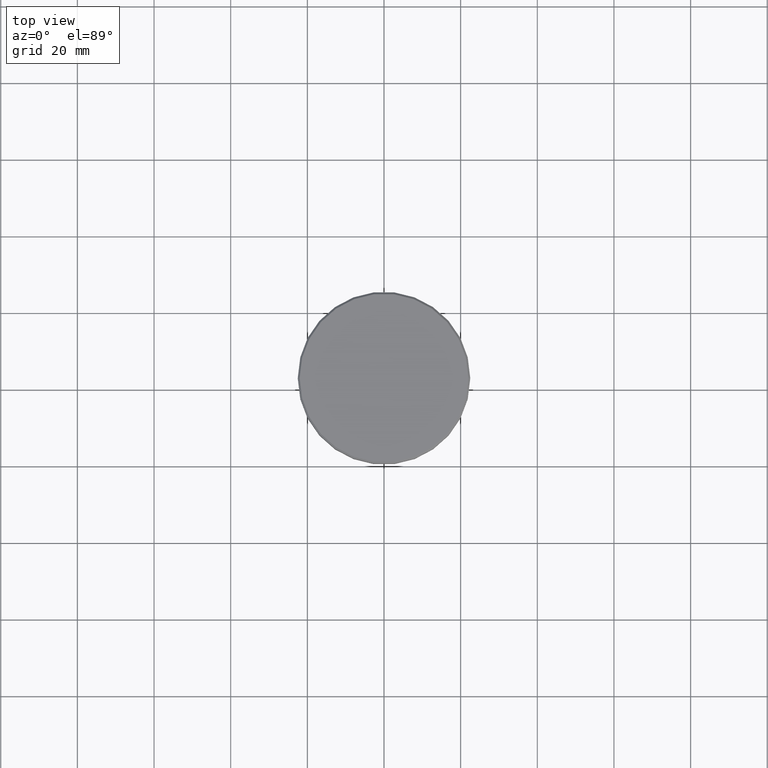
[diagram: clean part render]
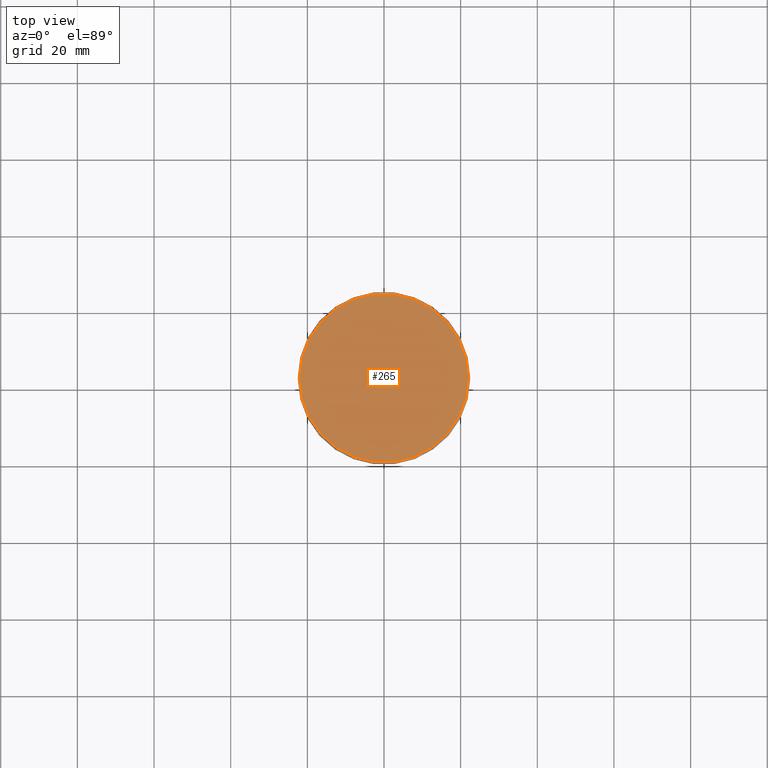
[diagram: same view with one face highlighted and labeled with its STEP entity id]
A machine part, top view. The second image highlights one B-rep face of the part: STEP entity #265.
In plain terms, the highlighted planar face has unit normal (0, -0, 1).
Its self-contained STEP definition (entity closure, byte-faithful):
#19 = CIRCLE ( 'NONE', #191, 21.99999999999999289 ) ;
#40 = DIRECTION ( 'NONE',  ( 1.000000000000000000, 0.000000000000000000, 0.000000000000000000 ) ) ;
#63 = CARTESIAN_POINT ( 'NONE',  ( 21.99999999999999289, 2.724839128102860202E-15, 0.000000000000000000 ) ) ;
#129 = AXIS2_PLACEMENT_3D ( 'NONE', #655, #1025, #288 ) ;
#170 = CIRCLE ( 'NONE', #129, 21.99999999999999289 ) ;
#191 = AXIS2_PLACEMENT_3D ( 'NONE', #554, #922, #459 ) ;
#244 = EDGE_CURVE ( 'NONE', #1045, #420, #170, .T. ) ;
#265 = ADVANCED_FACE ( 'NONE', ( #675 ), #488, .T. ) ;
#288 = DIRECTION ( 'NONE',  ( 1.000000000000000000, 0.000000000000000000, 0.000000000000000000 ) ) ;
#289 = ORIENTED_EDGE ( 'NONE', *, *, #1021, .T. ) ;
#420 = VERTEX_POINT ( 'NONE', #831 ) ;
#459 = DIRECTION ( 'NONE',  ( 1.000000000000000000, 0.000000000000000000, 0.000000000000000000 ) ) ;
#488 = PLANE ( 'NONE',  #818 ) ;
#554 = CARTESIAN_POINT ( 'NONE',  ( 0.000000000000000000, 0.000000000000000000, 0.000000000000000000 ) ) ;
#655 = CARTESIAN_POINT ( 'NONE',  ( 0.000000000000000000, 0.000000000000000000, 0.000000000000000000 ) ) ;
#675 = FACE_OUTER_BOUND ( 'NONE', #876, .T. ) ;
#818 = AXIS2_PLACEMENT_3D ( 'NONE', #862, #849, #40 ) ;
#831 = CARTESIAN_POINT ( 'NONE',  ( -21.99999999999999289, 0.000000000000000000, 0.000000000000000000 ) ) ;
#849 = DIRECTION ( 'NONE',  ( 0.000000000000000000, -0.000000000000000000, 1.000000000000000000 ) ) ;
#862 = CARTESIAN_POINT ( 'NONE',  ( 0.000000000000000000, 0.000000000000000000, 0.000000000000000000 ) ) ;
#876 = EDGE_LOOP ( 'NONE', ( #289, #1071 ) ) ;
#922 = DIRECTION ( 'NONE',  ( -0.000000000000000000, -0.000000000000000000, 1.000000000000000000 ) ) ;
#1021 = EDGE_CURVE ( 'NONE', #420, #1045, #19, .T. ) ;
#1025 = DIRECTION ( 'NONE',  ( -0.000000000000000000, -0.000000000000000000, 1.000000000000000000 ) ) ;
#1045 = VERTEX_POINT ( 'NONE', #63 ) ;
#1071 = ORIENTED_EDGE ( 'NONE', *, *, #244, .T. ) ;